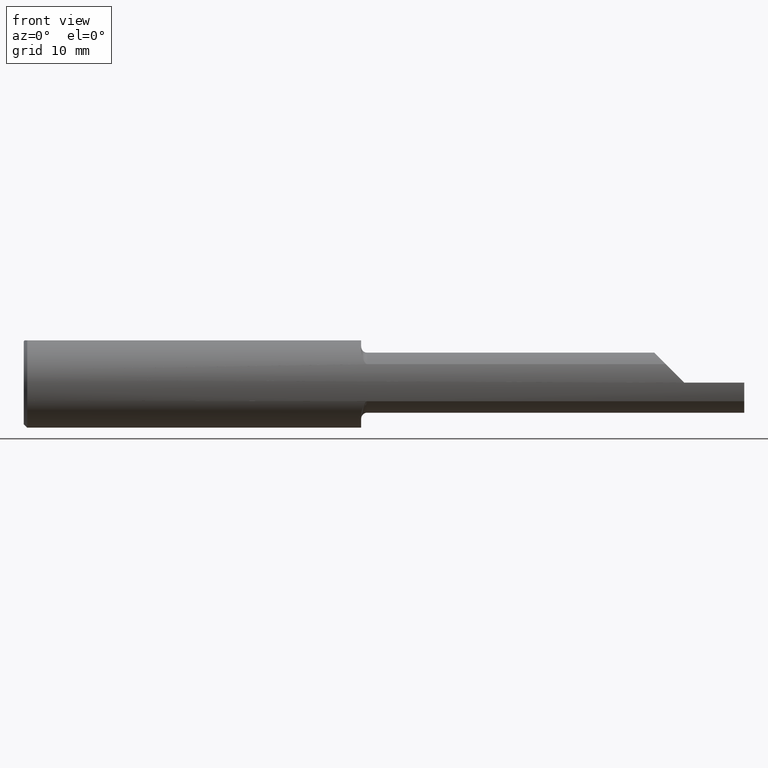
[diagram: clean part render]
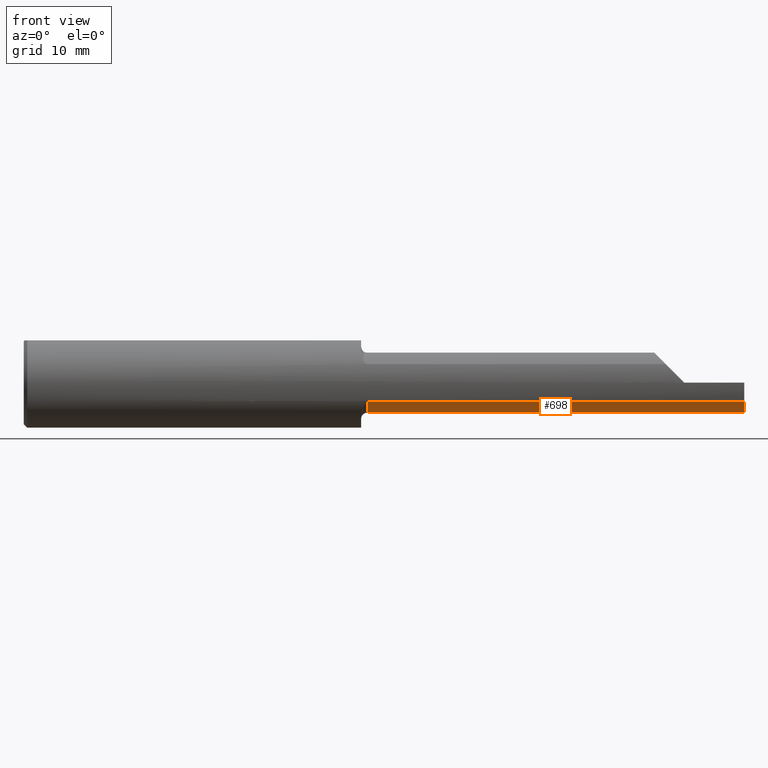
[diagram: same view with one face highlighted and labeled with its STEP entity id]
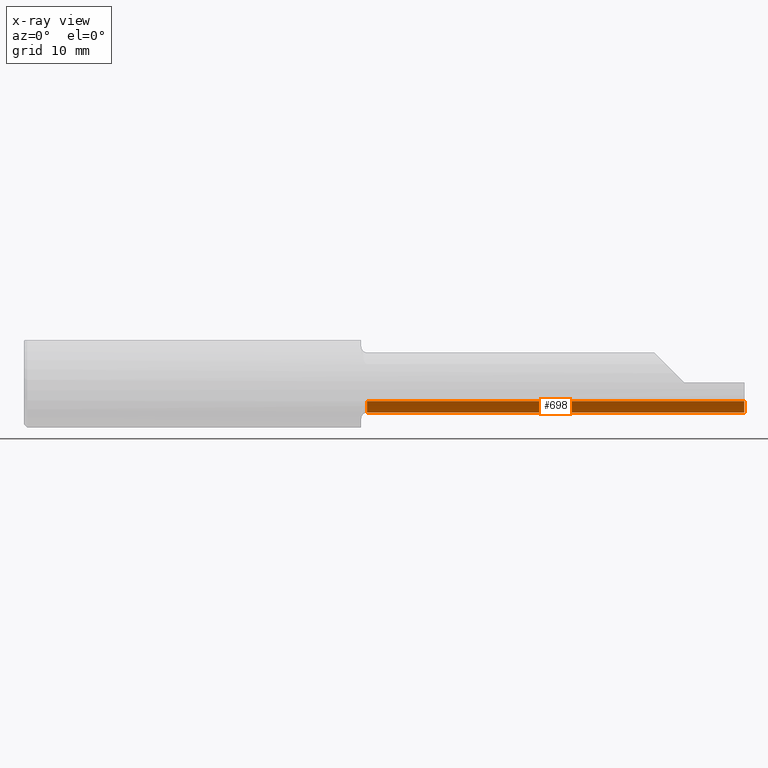
[diagram: x-ray of the same camera — body ghosted, the highlighted face saturated]
A machine part, front view. The second image highlights one B-rep face of the part: STEP entity #698.
The next image is the same camera in x-ray: the body ghosted, the highlighted face saturated — about 0% of this face is hidden behind the body in this view.
In plain terms, the highlighted cylindrical surface (edge-blend (fillet) strip) has radius 3.175 mm, axis along (-1, -0, -0).
Its self-contained STEP definition (entity closure, byte-faithful):
#15 = DIRECTION ( 'NONE',  ( -1.000000000000000000, -0.000000000000000000, -0.000000000000000000 ) ) ;
#17 = EDGE_CURVE ( 'NONE', #130, #91, #707, .T. ) ;
#21 = ORIENTED_EDGE ( 'NONE', *, *, #739, .F. ) ;
#27 = CARTESIAN_POINT ( 'NONE',  ( 3.000000000000000444, -0.07234999999999998377, 0.000000000000000000 ) ) ;
#39 = CARTESIAN_POINT ( 'NONE',  ( 1.405000000000000249, -0.07234999999999996989, -0.1250000000000000000 ) ) ;
#77 = EDGE_CURVE ( 'NONE', #130, #414, #285, .T. ) ;
#86 = VERTEX_POINT ( 'NONE', #726 ) ;
#91 = VERTEX_POINT ( 'NONE', #259 ) ;
#105 = AXIS2_PLACEMENT_3D ( 'NONE', #148, #752, #610 ) ;
#130 = VERTEX_POINT ( 'NONE', #320 ) ;
#148 = CARTESIAN_POINT ( 'NONE',  ( 1.429999999999999938, -0.07234999999999998377, 0.000000000000000000 ) ) ;
#188 = VECTOR ( 'NONE', #650, 39.37007874015748143 ) ;
#201 = DIRECTION ( 'NONE',  ( 1.000000000000000000, -0.000000000000000000, -0.000000000000000000 ) ) ;
#204 = DIRECTION ( 'NONE',  ( -1.000000000000000000, -0.000000000000000000, -0.000000000000000000 ) ) ;
#213 = FACE_OUTER_BOUND ( 'NONE', #310, .T. ) ;
#225 = EDGE_CURVE ( 'NONE', #414, #86, #695, .T. ) ;
#233 = CARTESIAN_POINT ( 'NONE',  ( 1.429999999999999938, -0.07234999999999996989, -0.1250000000000000000 ) ) ;
#259 = CARTESIAN_POINT ( 'NONE',  ( 1.429999999999999938, -0.1707639599170698019, -0.07706940050007766996 ) ) ;
#264 = CYLINDRICAL_SURFACE ( 'NONE', #520, 0.1250000000000000000 ) ;
#279 = ORIENTED_EDGE ( 'NONE', *, *, #77, .F. ) ;
#285 = CIRCLE ( 'NONE', #831, 0.1250000000000000000 ) ;
#310 = EDGE_LOOP ( 'NONE', ( #21, #626, #279, #526, #536 ) ) ;
#320 = CARTESIAN_POINT ( 'NONE',  ( 3.000000000000000444, -0.1707639599170698019, -0.07706940050007768384 ) ) ;
#364 = CARTESIAN_POINT ( 'NONE',  ( 1.405000000000000249, -0.07234999999999998377, 0.000000000000000000 ) ) ;
#414 = VERTEX_POINT ( 'NONE', #862 ) ;
#440 = VECTOR ( 'NONE', #15, 39.37007874015748143 ) ;
#500 = DIRECTION ( 'NONE',  ( 0.000000000000000000, 0.000000000000000000, 1.000000000000000000 ) ) ;
#503 = VECTOR ( 'NONE', #204, 39.37007874015748143 ) ;
#513 = DIRECTION ( 'NONE',  ( -1.000000000000000000, -0.000000000000000000, -0.000000000000000000 ) ) ;
#520 = AXIS2_PLACEMENT_3D ( 'NONE', #364, #513, #811 ) ;
#526 = ORIENTED_EDGE ( 'NONE', *, *, #17, .T. ) ;
#536 = ORIENTED_EDGE ( 'NONE', *, *, #919, .T. ) ;
#578 = LINE ( 'NONE', #39, #503 ) ;
#610 = DIRECTION ( 'NONE',  ( 0.000000000000000000, 0.000000000000000000, -1.000000000000000000 ) ) ;
#626 = ORIENTED_EDGE ( 'NONE', *, *, #225, .F. ) ;
#650 = DIRECTION ( 'NONE',  ( -1.000000000000000000, -0.000000000000000000, -0.000000000000000000 ) ) ;
#695 = LINE ( 'NONE', #776, #440 ) ;
#698 = ADVANCED_FACE ( 'NONE', ( #213 ), #264, .T. ) ;
#707 = LINE ( 'NONE', #868, #188 ) ;
#726 = CARTESIAN_POINT ( 'NONE',  ( 2.918197582037928672, -0.07235000000000001152, -0.1250000000000000000 ) ) ;
#739 = EDGE_CURVE ( 'NONE', #86, #875, #578, .T. ) ;
#752 = DIRECTION ( 'NONE',  ( 1.000000000000000000, 0.000000000000000000, 0.000000000000000000 ) ) ;
#776 = CARTESIAN_POINT ( 'NONE',  ( 3.000000000000000444, -0.07234999999999999765, -0.1249999999999999861 ) ) ;
#811 = DIRECTION ( 'NONE',  ( 0.000000000000000000, 0.000000000000000000, 1.000000000000000000 ) ) ;
#831 = AXIS2_PLACEMENT_3D ( 'NONE', #27, #201, #500 ) ;
#862 = CARTESIAN_POINT ( 'NONE',  ( 3.000000000000000444, -0.07234999999999999765, -0.1249999999999999861 ) ) ;
#868 = CARTESIAN_POINT ( 'NONE',  ( 2.152499999999999858, -0.1707639599170698019, -0.07706940050007766996 ) ) ;
#875 = VERTEX_POINT ( 'NONE', #233 ) ;
#919 = EDGE_CURVE ( 'NONE', #91, #875, #939, .T. ) ;
#939 = CIRCLE ( 'NONE', #105, 0.1250000000000000000 ) ;